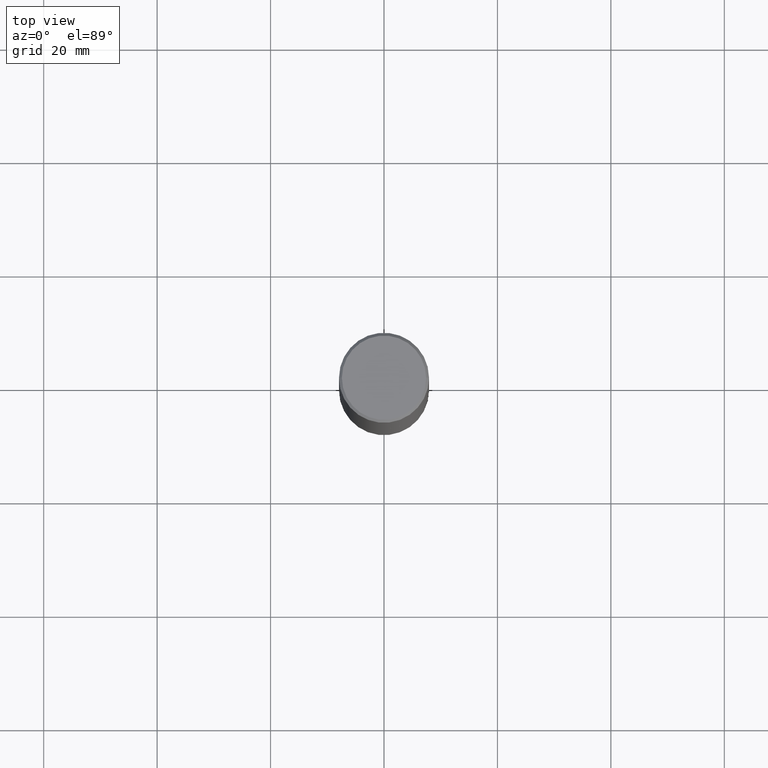
[diagram: clean part render]
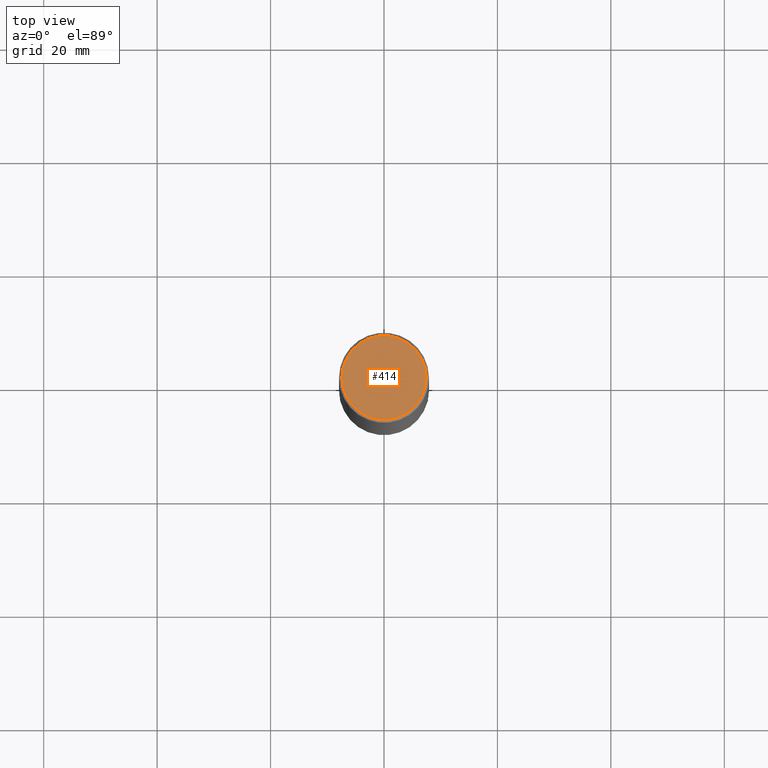
[diagram: same view with one face highlighted and labeled with its STEP entity id]
A machine part, top view. The second image highlights one B-rep face of the part: STEP entity #414.
In plain terms, the highlighted planar face has unit normal (0, -0, -1).
Its self-contained STEP definition (entity closure, byte-faithful):
#24 = CARTESIAN_POINT ( 'NONE',  ( -1.043851414335219820E-46, 1.490343170380447200E-32, 4.268512490100411279E-18 ) ) ;
#48 = CARTESIAN_POINT ( 'NONE',  ( 2.042516583223230567E-15, 0.2924999999999997047, -1.019124035366569015E-15 ) ) ;
#50 = DIRECTION ( 'NONE',  ( 2.438088387897960049E-29, -3.491481338843145188E-15, -1.000000000000000000 ) ) ;
#55 = DIRECTION ( 'NONE',  ( 1.000000000000000000, -6.982962677686266711E-15, 4.876067333457694521E-29 ) ) ;
#113 = FACE_OUTER_BOUND ( 'NONE', #150, .T. ) ;
#118 = PLANE ( 'NONE',  #194 ) ;
#121 = ORIENTED_EDGE ( 'NONE', *, *, #292, .T. ) ;
#150 = EDGE_LOOP ( 'NONE', ( #207, #121 ) ) ;
#182 = CARTESIAN_POINT ( 'NONE',  ( -1.043851414335219820E-46, 1.490343170380447200E-32, 4.268512490100411279E-18 ) ) ;
#194 = AXIS2_PLACEMENT_3D ( 'NONE', #48, #50, #258 ) ;
#198 = DIRECTION ( 'NONE',  ( -2.445468806185136597E-29, 3.491481338843145583E-15, 1.000000000000000000 ) ) ;
#207 = ORIENTED_EDGE ( 'NONE', *, *, #231, .T. ) ;
#229 = VERTEX_POINT ( 'NONE', #306 ) ;
#231 = EDGE_CURVE ( 'NONE', #229, #419, #354, .T. ) ;
#245 = CIRCLE ( 'NONE', #362, 0.2924999999999997047 ) ;
#258 = DIRECTION ( 'NONE',  ( -1.000000000000000000, 6.982962677686265922E-15, -4.876176775795935793E-29 ) ) ;
#292 = EDGE_CURVE ( 'NONE', #419, #229, #245, .T. ) ;
#306 = CARTESIAN_POINT ( 'NONE',  ( -0.2924999999999997047, 2.077431396611662216E-15, 4.268512490086005323E-18 ) ) ;
#316 = DIRECTION ( 'NONE',  ( 1.000000000000000000, -6.982962677686266711E-15, 4.876067333457694521E-29 ) ) ;
#321 = AXIS2_PLACEMENT_3D ( 'NONE', #24, #198, #55 ) ;
#354 = CIRCLE ( 'NONE', #321, 0.2924999999999997047 ) ;
#362 = AXIS2_PLACEMENT_3D ( 'NONE', #182, #415, #316 ) ;
#389 = CARTESIAN_POINT ( 'NONE',  ( 0.2924999999999997047, -2.110215457714317959E-15, 4.268512490114932791E-18 ) ) ;
#414 = ADVANCED_FACE ( 'NONE', ( #113 ), #118, .F. ) ;
#415 = DIRECTION ( 'NONE',  ( -2.445468806185136597E-29, 3.491481338843145583E-15, 1.000000000000000000 ) ) ;
#419 = VERTEX_POINT ( 'NONE', #389 ) ;